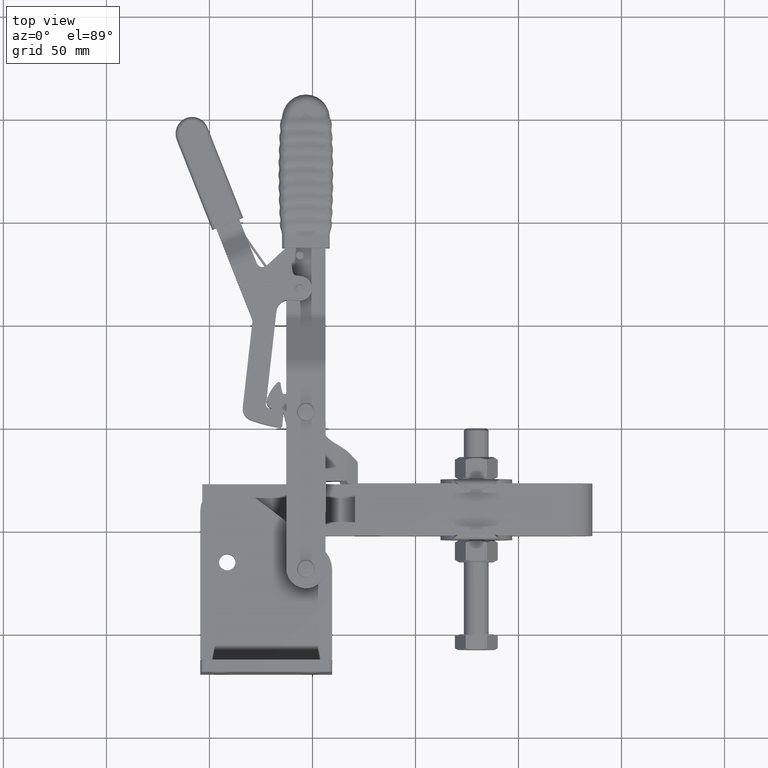
[diagram: clean part render]
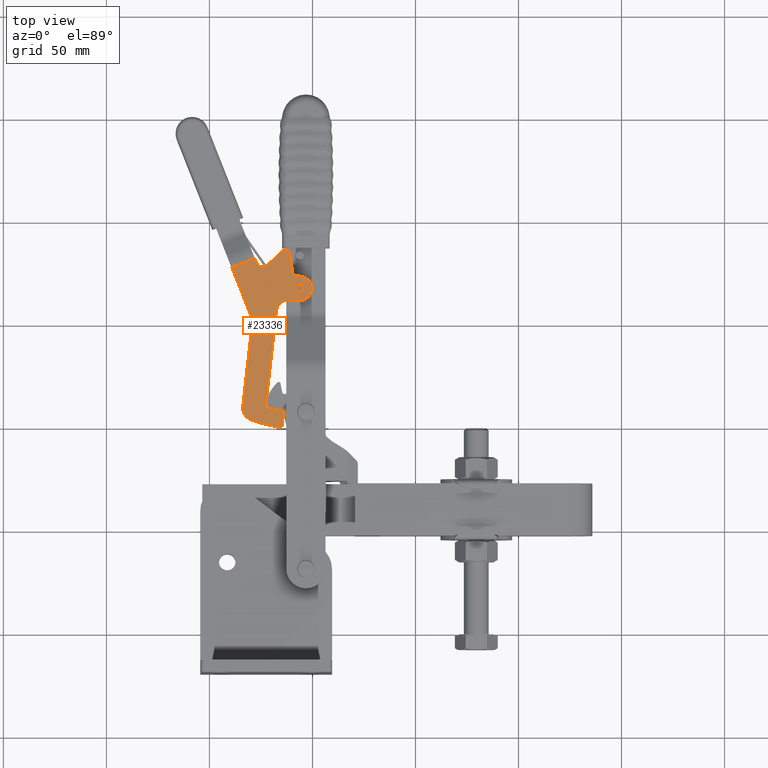
[diagram: same view with one face highlighted and labeled with its STEP entity id]
A machine part, top view. The second image highlights one B-rep face of the part: STEP entity #23336.
In plain terms, the highlighted face is a freeform B-spline surface patch.
Its self-contained STEP definition (entity closure, byte-faithful):
#21153=CARTESIAN_POINT('',(91.817410875517226,316.979438222346290,27.525000000000439));
#21154=VERTEX_POINT('',#21153);
#21161=CARTESIAN_POINT('',(95.784536517170196,317.242824226650100,27.525000000000443));
#21162=VERTEX_POINT('',#21161);
#21163=CARTESIAN_POINT('',(93.786439388011502,317.330047288094140,27.525000000000439));
#21164=DIRECTION('',(-1.559766E-016,6.808855E-018,1.000000000000000));
#21165=DIRECTION('',(-0.999048564579362,0.043611530722001,-1.561251E-016));
#21166=AXIS2_PLACEMENT_3D('',#21163,#21164,#21165);
#21167=CIRCLE('',#21166,2.000000000000000);
#21168=EDGE_CURVE('',#21154,#21162,#21167,.T.);
#21170=CARTESIAN_POINT('',(95.755467900505664,317.680656353842660,27.525000000000439));
#21171=VERTEX_POINT('',#21170);
#21172=CARTESIAN_POINT('',(93.786439388011502,317.330047288094140,27.525000000000439));
#21173=DIRECTION('',(-1.559766E-016,6.808855E-018,1.000000000000000));
#21174=DIRECTION('',(-0.999048564579362,0.043611530722001,-1.561251E-016));
#21175=AXIS2_PLACEMENT_3D('',#21172,#21173,#21174);
#21176=CIRCLE('',#21175,2.000000000000000);
#21177=EDGE_CURVE('',#21162,#21171,#21176,.T.);
#21901=CARTESIAN_POINT('',(71.085021047219087,330.448579460141900,27.525000000000457));
#21902=VERTEX_POINT('',#21901);
#21910=CARTESIAN_POINT('',(72.182712659058438,328.147267712708190,27.525000000000460));
#21911=VERTEX_POINT('',#21910);
#21912=CARTESIAN_POINT('',(72.182712659058438,328.147267712708190,27.525000000000460));
#21913=DIRECTION('',(-0.430518194826787,0.902581898734450,-1.393386E-015));
#21914=VECTOR('',#21913,2.549698537784201);
#21915=LINE('',#21912,#21914);
#21916=EDGE_CURVE('',#21911,#21902,#21915,.T.);
#22127=CARTESIAN_POINT('',(93.786439388011502,317.330047288094140,27.525000000000439));
#22128=DIRECTION('',(-1.559766E-016,6.808855E-018,1.000000000000000));
#22129=DIRECTION('',(-0.999048564579362,0.043611530722001,-1.561251E-016));
#22130=AXIS2_PLACEMENT_3D('',#22127,#22128,#22129);
#22131=CIRCLE('',#22130,2.000000000000000);
#22132=EDGE_CURVE('',#21171,#21154,#22131,.T.);
#22228=CARTESIAN_POINT('',(60.254038262877174,325.282361122139890,27.525000000000443));
#22229=VERTEX_POINT('',#22228);
#22237=CARTESIAN_POINT('',(60.254038262877174,325.282361122139890,27.525000000000443));
#22238=DIRECTION('',(0.902581898724559,0.430518194847524,1.184238E-015));
#22239=VECTOR('',#22238,11.999999999609132);
#22240=LINE('',#22237,#22239);
#22241=EDGE_CURVE('',#22229,#21902,#22240,.T.);
#22447=CARTESIAN_POINT('',(93.524770203679495,311.335755900617930,27.525000000000446));
#22448=VERTEX_POINT('',#22447);
#22455=CARTESIAN_POINT('',(89.528575945362007,311.510202023505940,27.525000000000439));
#22456=VERTEX_POINT('',#22455);
#22457=CARTESIAN_POINT('',(89.528575945362007,311.510202023505940,27.525000000000439));
#22458=DIRECTION('',(0.999048564579362,-0.043611530722003,1.776357E-015));
#22459=VECTOR('',#22458,4.000000000000039);
#22460=LINE('',#22457,#22459);
#22461=EDGE_CURVE('',#22456,#22448,#22460,.T.);
#22507=CARTESIAN_POINT('',(94.048108572343494,323.324338675570290,27.525000000000457));
#22508=VERTEX_POINT('',#22507);
#22515=CARTESIAN_POINT('',(93.786439388011502,317.330047288094140,27.525000000000439));
#22516=DIRECTION('',(-6.254060E-017,-1.432674E-015,1.0));
#22517=DIRECTION('',(-0.043611530722001,-0.999048564579362,-1.434038E-015));
#22518=AXIS2_PLACEMENT_3D('',#22515,#22516,#22517);
#22519=CIRCLE('',#22518,6.000000000000002);
#22520=EDGE_CURVE('',#22448,#22508,#22519,.T.);
#22539=CARTESIAN_POINT('',(91.726105059679810,323.425701243036430,27.525000000000446));
#22540=VERTEX_POINT('',#22539);
#22547=CARTESIAN_POINT('',(94.048108572343494,323.324338675570290,27.525000000000457));
#22548=DIRECTION('',(-0.999048564579362,0.043611530722001,-4.585695E-015));
#22549=VECTOR('',#22548,2.324214853000001);
#22550=LINE('',#22547,#22549);
#22551=EDGE_CURVE('',#22508,#22540,#22550,.T.);
#22592=CARTESIAN_POINT('',(89.870233605596894,324.950106799413900,27.525000000000446));
#22593=VERTEX_POINT('',#22592);
#22600=CARTESIAN_POINT('',(91.813328121686837,325.423798373665930,27.525000000000453));
#22601=DIRECTION('',(5.056098E-016,1.232586E-016,-1.000000000000000));
#22602=DIRECTION('',(0.971547257319201,0.236845786949101,5.204170E-016));
#22603=AXIS2_PLACEMENT_3D('',#22600,#22601,#22602);
#22604=CIRCLE('',#22603,2.000000001494069);
#22605=EDGE_CURVE('',#22540,#22593,#22604,.T.);
#22624=CARTESIAN_POINT('',(87.644430345121521,334.080406676393350,27.525000000000457));
#22625=VERTEX_POINT('',#22624);
#22632=CARTESIAN_POINT('',(89.870233605596894,324.950106799413900,27.525000000000446));
#22633=DIRECTION('',(-0.236845786287718,0.971547257480434,1.134124E-015));
#22634=VECTOR('',#22633,9.397689928802384);
#22635=LINE('',#22632,#22634);
#22636=EDGE_CURVE('',#22593,#22625,#22635,.T.);
#22677=CARTESIAN_POINT('',(84.247030615926548,334.979666793986210,27.525000000000468));
#22678=VERTEX_POINT('',#22677);
#22685=CARTESIAN_POINT('',(85.701335830054973,333.606715103243350,27.525000000000468));
#22686=DIRECTION('',(-5.393171E-016,-1.314758E-016,1.000000000000000));
#22687=DIRECTION('',(0.971547257417299,0.236845786546701,5.551115E-016));
#22688=AXIS2_PLACEMENT_3D('',#22685,#22686,#22687);
#22689=CIRCLE('',#22688,2.000000000238704);
#22690=EDGE_CURVE('',#22625,#22678,#22689,.T.);
#22709=CARTESIAN_POINT('',(77.071916175674332,327.379394761813330,27.525000000000453));
#22710=VERTEX_POINT('',#22709);
#22717=CARTESIAN_POINT('',(84.247030615926548,334.979666793986210,27.525000000000468));
#22718=DIRECTION('',(-0.686475845489496,-0.727152606788617,-1.359617E-015));
#22719=VECTOR('',#22718,10.452100372353165);
#22720=LINE('',#22717,#22719);
#22721=EDGE_CURVE('',#22678,#22710,#22720,.T.);
#22761=CARTESIAN_POINT('',(74.890458354962732,329.438822298083660,27.525000000000460));
#22762=DIRECTION('',(7.724268E-016,3.684361E-016,-1.0));
#22763=DIRECTION('',(0.902581898600038,0.430518195108582,8.557969E-016));
#22764=AXIS2_PLACEMENT_3D('',#22761,#22762,#22763);
#22765=CIRCLE('',#22764,3.000000000115457);
#22766=EDGE_CURVE('',#22710,#21911,#22765,.T.);
#22809=CARTESIAN_POINT('',(71.970129390437066,299.088238887324220,27.525000000000411));
#22810=VERTEX_POINT('',#22809);
#22817=CARTESIAN_POINT('',(71.391329396266741,301.933017242763870,27.525000000000411));
#22818=VERTEX_POINT('',#22817);
#22819=CARTESIAN_POINT('',(65.975837988145656,299.349908072302920,27.525000000000418));
#22820=DIRECTION('',(1.704188E-016,-7.439305E-018,-1.0));
#22821=DIRECTION('',(-0.999048564579362,0.043611530722001,-1.705811E-016));
#22822=AXIS2_PLACEMENT_3D('',#22819,#22820,#22821);
#22823=CIRCLE('',#22822,6.000000014829336);
#22824=EDGE_CURVE('',#22818,#22810,#22823,.T.);
#22848=CARTESIAN_POINT('',(70.182831616494113,258.145001033192610,27.525000000000350));
#22849=VERTEX_POINT('',#22848);
#22856=CARTESIAN_POINT('',(71.970129390437066,299.088238887324220,27.525000000000411));
#22857=DIRECTION('',(-0.043611530722000,-0.999048564579362,-1.473715E-015));
#22858=VECTOR('',#22857,40.982229799179265);
#22859=LINE('',#22856,#22858);
#22860=EDGE_CURVE('',#22810,#22849,#22859,.T.);
#22901=CARTESIAN_POINT('',(74.472995612211534,252.130423903569720,27.525000000000340));
#22902=VERTEX_POINT('',#22901);
#22909=CARTESIAN_POINT('',(76.177123002840858,257.883331848526100,27.525000000000361));
#22910=DIRECTION('',(-1.299805E-016,5.674046E-018,1.000000000000000));
#22911=DIRECTION('',(-0.999048564576575,0.043611530785852,-1.301043E-016));
#22912=AXIS2_PLACEMENT_3D('',#22909,#22910,#22911);
#22913=CIRCLE('',#22912,5.999999998886266);
#22914=EDGE_CURVE('',#22849,#22902,#22913,.T.);
#22955=CARTESIAN_POINT('',(88.794257386424675,249.513543995489670,27.525000000000350));
#22956=VERTEX_POINT('',#22955);
#22963=CARTESIAN_POINT('',(93.786439381102696,317.330047248759000,27.525000000000439));
#22964=DIRECTION('',(-4.080701E-016,-1.377591E-015,1.000000000000000));
#22965=DIRECTION('',(-0.284021232062263,-0.958817990933542,-1.436759E-015));
#22966=AXIS2_PLACEMENT_3D('',#22963,#22964,#22965);
#22967=CIRCLE('',#22966,67.999999960063747);
#22968=EDGE_CURVE('',#22902,#22956,#22967,.T.);
#23009=CARTESIAN_POINT('',(89.866720391926123,250.467233983481490,27.525000000000350));
#23010=VERTEX_POINT('',#23009);
#23017=CARTESIAN_POINT('',(88.867671827654888,250.510845514190010,27.525000000000340));
#23018=DIRECTION('',(-1.018830E-016,-1.384034E-015,1.0));
#23019=DIRECTION('',(-0.073414441252864,-0.997301519007933,-1.387779E-015));
#23020=AXIS2_PLACEMENT_3D('',#23017,#23018,#23019);
#23021=CIRCLE('',#23020,0.999999999691557);
#23022=EDGE_CURVE('',#22956,#23010,#23021,.T.);
#23041=CARTESIAN_POINT('',(90.128517720111773,256.464460877483420,27.525000000000350));
#23042=VERTEX_POINT('',#23041);
#23049=CARTESIAN_POINT('',(89.866720391926123,250.467233983481490,27.525000000000350));
#23050=DIRECTION('',(0.043611530722003,0.999048564579362,0.0));
#23051=VECTOR('',#23050,6.002938302130477);
#23052=LINE('',#23049,#23051);
#23053=EDGE_CURVE('',#23010,#23042,#23052,.T.);
#23094=CARTESIAN_POINT('',(89.205812930608033,257.505153964022720,27.525000000000354));
#23095=VERTEX_POINT('',#23094);
#23102=CARTESIAN_POINT('',(89.129469154679811,256.508072407902940,27.525000000000350));
#23103=DIRECTION('',(-1.429785E-016,6.241451E-018,1.0));
#23104=DIRECTION('',(0.999048564594162,-0.043611530382968,1.431147E-016));
#23105=AXIS2_PLACEMENT_3D('',#23102,#23103,#23104);
#23106=CIRCLE('',#23105,1.000000000838607);
#23107=EDGE_CURVE('',#23042,#23095,#23106,.T.);
#23148=CARTESIAN_POINT('',(82.926770194822836,258.321000651635530,27.525000000000354));
#23149=VERTEX_POINT('',#23148);
#23156=CARTESIAN_POINT('',(93.786439356437342,317.330047014717080,27.525000000000439));
#23157=DIRECTION('',(2.545294E-016,1.383056E-015,-1.0));
#23158=DIRECTION('',(0.180994486856969,0.983484110561723,1.406283E-015));
#23159=AXIS2_PLACEMENT_3D('',#23156,#23157,#23158);
#23160=CIRCLE('',#23159,59.999999724833565);
#23161=EDGE_CURVE('',#23095,#23149,#23160,.T.);
#23202=CARTESIAN_POINT('',(81.290662038787815,260.375191933931430,27.525000000000365));
#23203=VERTEX_POINT('',#23202);
#23210=CARTESIAN_POINT('',(83.288759167513177,260.287968872506330,27.525000000000354));
#23211=DIRECTION('',(1.429785E-016,-6.241451E-018,-1.0));
#23212=DIRECTION('',(0.999048564579362,-0.043611530722001,1.431147E-016));
#23213=AXIS2_PLACEMENT_3D('',#23210,#23211,#23212);
#23214=CIRCLE('',#23213,1.999999999566215);
#23215=EDGE_CURVE('',#23149,#23203,#23214,.T.);
#23234=CARTESIAN_POINT('',(83.272615373553833,305.777579820361780,27.525000000000421));
#23235=VERTEX_POINT('',#23234);
#23242=CARTESIAN_POINT('',(81.290662038787815,260.375191933931430,27.525000000000365));
#23243=DIRECTION('',(0.043611530722001,0.999048564579362,1.250801E-015));
#23244=VECTOR('',#23243,45.445626465162377);
#23245=LINE('',#23242,#23244);
#23246=EDGE_CURVE('',#23203,#23235,#23245,.T.);
#23286=CARTESIAN_POINT('',(89.266906761030000,305.515910636029790,27.525000000000421));
#23287=DIRECTION('',(6.455803E-017,1.478889E-015,-1.0));
#23288=DIRECTION('',(-0.043611530722001,-0.999048564579362,-1.480297E-015));
#23289=AXIS2_PLACEMENT_3D('',#23286,#23287,#23288);
#23290=CIRCLE('',#23289,5.999999999999995);
#23291=EDGE_CURVE('',#23235,#22456,#23290,.T.);
#23297=CARTESIAN_POINT('',(60.329227530373615,337.329143289801890,27.525000000000457));
#23298=CARTESIAN_POINT('',(103.537639625922110,335.442963720195790,27.525000000000464));
#23299=CARTESIAN_POINT('',(56.502838024966536,249.674596897784680,27.525000000000336));
#23300=CARTESIAN_POINT('',(99.711250120515032,247.788417328178530,27.525000000000343));
#23301=B_SPLINE_SURFACE_WITH_KNOTS('',1,1,((#23297,#23299),(#23298,#23300)),.UNSPECIFIED.,.F.,.F.,.U.,(2,2),(2,2),(0.0,43.249561260058364),(0.0,87.738023455269300),.UNSPECIFIED.);
#23302=ORIENTED_EDGE('',*,*,#22241,.F.);
#23303=CARTESIAN_POINT('',(60.254038262877174,325.282361122139890,27.525000000000443));
#23304=DIRECTION('',(0.430518194847520,-0.902581898724560,-1.235989E-015));
#23305=VECTOR('',#23304,25.869501606858073);
#23306=LINE('',#23303,#23305);
#23307=EDGE_CURVE('',#22229,#22818,#23306,.T.);
#23308=ORIENTED_EDGE('',*,*,#23307,.T.);
#23309=ORIENTED_EDGE('',*,*,#22824,.T.);
#23310=ORIENTED_EDGE('',*,*,#22860,.T.);
#23311=ORIENTED_EDGE('',*,*,#22914,.T.);
#23312=ORIENTED_EDGE('',*,*,#22968,.T.);
#23313=ORIENTED_EDGE('',*,*,#23022,.T.);
#23314=ORIENTED_EDGE('',*,*,#23053,.T.);
#23315=ORIENTED_EDGE('',*,*,#23107,.T.);
#23316=ORIENTED_EDGE('',*,*,#23161,.T.);
#23317=ORIENTED_EDGE('',*,*,#23215,.T.);
#23318=ORIENTED_EDGE('',*,*,#23246,.T.);
#23319=ORIENTED_EDGE('',*,*,#23291,.T.);
#23320=ORIENTED_EDGE('',*,*,#22461,.T.);
#23321=ORIENTED_EDGE('',*,*,#22520,.T.);
#23322=ORIENTED_EDGE('',*,*,#22551,.T.);
#23323=ORIENTED_EDGE('',*,*,#22605,.T.);
#23324=ORIENTED_EDGE('',*,*,#22636,.T.);
#23325=ORIENTED_EDGE('',*,*,#22690,.T.);
#23326=ORIENTED_EDGE('',*,*,#22721,.T.);
#23327=ORIENTED_EDGE('',*,*,#22766,.T.);
#23328=ORIENTED_EDGE('',*,*,#21916,.T.);
#23329=EDGE_LOOP('',(#23302,#23308,#23309,#23310,#23311,#23312,#23313,#23314,#23315,#23316,#23317,#23318,#23319,#23320,#23321,#23322,#23323,#23324,#23325,#23326,#23327,#23328));
#23330=FACE_OUTER_BOUND('',#23329,.T.);
#23331=ORIENTED_EDGE('',*,*,#21177,.F.);
#23332=ORIENTED_EDGE('',*,*,#21168,.F.);
#23333=ORIENTED_EDGE('',*,*,#22132,.F.);
#23334=EDGE_LOOP('',(#23331,#23332,#23333));
#23335=FACE_BOUND('',#23334,.T.);
#23336=ADVANCED_FACE('',(#23330,#23335),#23301,.F.);